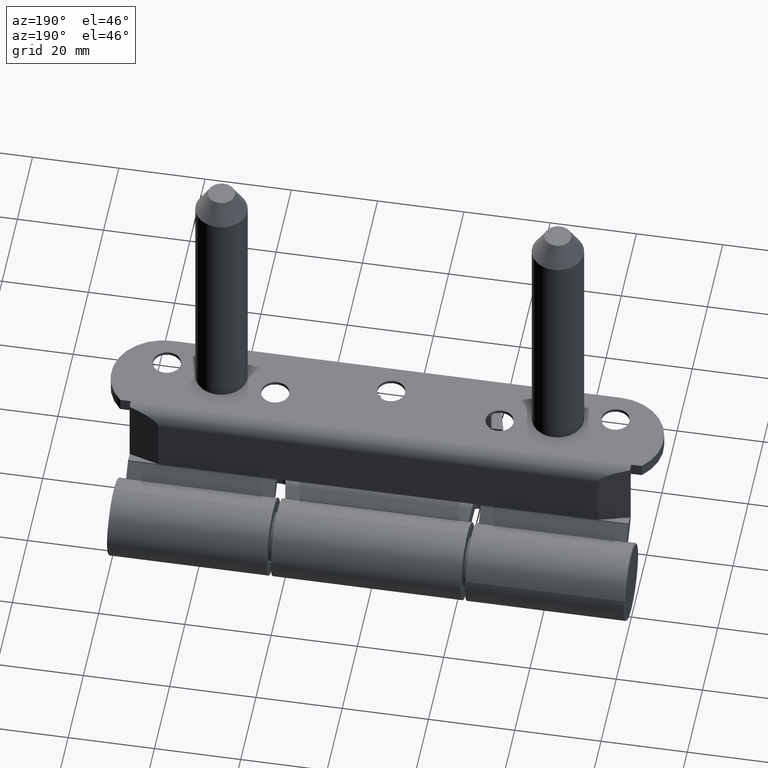
[diagram: clean part render]
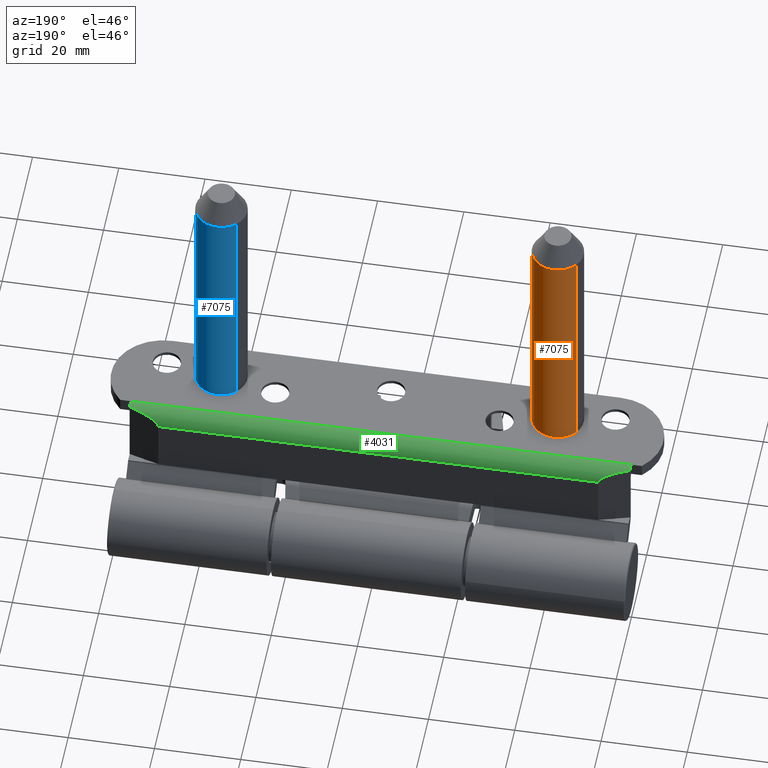
[diagram: same view with three faces highlighted in distinct colors, each labeled with its STEP entity id]
A machine part, auxiliary view with three faces highlighted in distinct colors.
Their STEP definitions:

[orange] entity #7075 — the highlighted cylindrical surface (edge-blend (fillet) strip) has radius 6 mm, axis along (0, 0, 1).
#106 = CARTESIAN_POINT ( 'NONE',  ( -9.325873406851316517E-15, -3.989242903983501037E-15, -6.000000000000000000 ) ) ;
#1635 = DIRECTION ( 'NONE',  ( -2.536605383552710837E-17, -1.000000000000000000, -6.648738173305840321E-16 ) ) ;
#2086 = EDGE_CURVE ( 'NONE', #13755, #12545, #3164, .T. ) ;
#2685 = EDGE_CURVE ( 'NONE', #13216, #12545, #12591, .T. ) ;
#2904 = EDGE_CURVE ( 'NONE', #3622, #13755, #11991, .T. ) ;
#3164 = LINE ( 'NONE', #3252, #4709 ) ;
#3252 = CARTESIAN_POINT ( 'NONE',  ( 1.006066148633973056E-14, 3.989242903983501037E-15, 6.000000000000000000 ) ) ;
#3622 = VERTEX_POINT ( 'NONE', #16735 ) ;
#3996 = ORIENTED_EDGE ( 'NONE', *, *, #2086, .T. ) ;
#4236 = ORIENTED_EDGE ( 'NONE', *, *, #16980, .F. ) ;
#4709 = VECTOR ( 'NONE', #1635, 1000.000000000000000 ) ;
#5598 = AXIS2_PLACEMENT_3D ( 'NONE', #13351, #6239, #14623 ) ;
#6239 = DIRECTION ( 'NONE',  ( -2.536605383552710837E-17, -1.000000000000000000, -6.648738173305840321E-16 ) ) ;
#6515 = FACE_OUTER_BOUND ( 'NONE', #13577, .T. ) ;
#7075 = ADVANCED_FACE ( 'NONE', ( #6515 ), #10913, .T. ) ;
#7873 = ORIENTED_EDGE ( 'NONE', *, *, #2685, .F. ) ;
#8057 = CARTESIAN_POINT ( 'NONE',  ( 3.469446951953614189E-14, 60.00000000000002842, 1.079865363795562416E-13 ) ) ;
#9296 = ORIENTED_EDGE ( 'NONE', *, *, #2904, .T. ) ;
#9434 = CARTESIAN_POINT ( 'NONE',  ( 9.452703676028946066E-15, 5.000000000000001776, 5.999999999999998224 ) ) ;
#9945 = CARTESIAN_POINT ( 'NONE',  ( 1.088505823599401891E-14, 60.00000000000002132, 6.000000000000107470 ) ) ;
#10735 = DIRECTION ( 'NONE',  ( -1.554312234475219354E-15, -6.648738173305835390E-16, -1.000000000000000000 ) ) ;
#10913 = CYLINDRICAL_SURFACE ( 'NONE', #14229, 6.000000000000000000 ) ;
#11407 = AXIS2_PLACEMENT_3D ( 'NONE', #8057, #12331, #12159 ) ;
#11991 = CIRCLE ( 'NONE', #11407, 6.000000000000000000 ) ;
#12159 = DIRECTION ( 'NONE',  ( -1.554312234475219354E-15, -1.156482317317871331E-15, -1.000000000000000000 ) ) ;
#12165 = DIRECTION ( 'NONE',  ( -2.536605383552710837E-17, -1.000000000000000000, -6.648738173305840321E-16 ) ) ;
#12331 = DIRECTION ( 'NONE',  ( -2.536605383552710837E-17, -1.000000000000000000, -6.648738173305840321E-16 ) ) ;
#12545 = VERTEX_POINT ( 'NONE', #9434 ) ;
#12591 = CIRCLE ( 'NONE', #5598, 6.000000000000000000 ) ;
#12664 = VECTOR ( 'NONE', #16760, 1000.000000000000000 ) ;
#13216 = VERTEX_POINT ( 'NONE', #14475 ) ;
#13351 = CARTESIAN_POINT ( 'NONE',  ( -6.938893903907228378E-15, 5.000000000000004441, 1.647987302177966740E-14 ) ) ;
#13577 = EDGE_LOOP ( 'NONE', ( #9296, #3996, #7873, #4236 ) ) ;
#13755 = VERTEX_POINT ( 'NONE', #9945 ) ;
#14198 = LINE ( 'NONE', #106, #12664 ) ;
#14229 = AXIS2_PLACEMENT_3D ( 'NONE', #16440, #12165, #10735 ) ;
#14475 = CARTESIAN_POINT ( 'NONE',  ( -8.464255058185272925E-15, 5.000000000000008882, -6.000000000000000000 ) ) ;
#14623 = DIRECTION ( 'NONE',  ( -1.554312234475219354E-15, -7.228014483236696555E-16, -1.000000000000000000 ) ) ;
#16440 = CARTESIAN_POINT ( 'NONE',  ( 0.000000000000000000, 0.000000000000000000, 0.000000000000000000 ) ) ;
#16735 = CARTESIAN_POINT ( 'NONE',  ( 2.536859611268482379E-14, 60.00000000000002132, -5.999999999999892530 ) ) ;
#16760 = DIRECTION ( 'NONE',  ( -2.536605383552710837E-17, -1.000000000000000000, -6.648738173305840321E-16 ) ) ;
#16980 = EDGE_CURVE ( 'NONE', #3622, #13216, #14198, .T. ) ;

[blue] entity #7075 — the highlighted cylindrical surface (edge-blend (fillet) strip) has radius 6 mm, axis along (0, 0, 1).
#106 = CARTESIAN_POINT ( 'NONE',  ( -9.325873406851316517E-15, -3.989242903983501037E-15, -6.000000000000000000 ) ) ;
#1635 = DIRECTION ( 'NONE',  ( -2.536605383552710837E-17, -1.000000000000000000, -6.648738173305840321E-16 ) ) ;
#2086 = EDGE_CURVE ( 'NONE', #13755, #12545, #3164, .T. ) ;
#2685 = EDGE_CURVE ( 'NONE', #13216, #12545, #12591, .T. ) ;
#2904 = EDGE_CURVE ( 'NONE', #3622, #13755, #11991, .T. ) ;
#3164 = LINE ( 'NONE', #3252, #4709 ) ;
#3252 = CARTESIAN_POINT ( 'NONE',  ( 1.006066148633973056E-14, 3.989242903983501037E-15, 6.000000000000000000 ) ) ;
#3622 = VERTEX_POINT ( 'NONE', #16735 ) ;
#3996 = ORIENTED_EDGE ( 'NONE', *, *, #2086, .T. ) ;
#4236 = ORIENTED_EDGE ( 'NONE', *, *, #16980, .F. ) ;
#4709 = VECTOR ( 'NONE', #1635, 1000.000000000000000 ) ;
#5598 = AXIS2_PLACEMENT_3D ( 'NONE', #13351, #6239, #14623 ) ;
#6239 = DIRECTION ( 'NONE',  ( -2.536605383552710837E-17, -1.000000000000000000, -6.648738173305840321E-16 ) ) ;
#6515 = FACE_OUTER_BOUND ( 'NONE', #13577, .T. ) ;
#7075 = ADVANCED_FACE ( 'NONE', ( #6515 ), #10913, .T. ) ;
#7873 = ORIENTED_EDGE ( 'NONE', *, *, #2685, .F. ) ;
#8057 = CARTESIAN_POINT ( 'NONE',  ( 3.469446951953614189E-14, 60.00000000000002842, 1.079865363795562416E-13 ) ) ;
#9296 = ORIENTED_EDGE ( 'NONE', *, *, #2904, .T. ) ;
#9434 = CARTESIAN_POINT ( 'NONE',  ( 9.452703676028946066E-15, 5.000000000000001776, 5.999999999999998224 ) ) ;
#9945 = CARTESIAN_POINT ( 'NONE',  ( 1.088505823599401891E-14, 60.00000000000002132, 6.000000000000107470 ) ) ;
#10735 = DIRECTION ( 'NONE',  ( -1.554312234475219354E-15, -6.648738173305835390E-16, -1.000000000000000000 ) ) ;
#10913 = CYLINDRICAL_SURFACE ( 'NONE', #14229, 6.000000000000000000 ) ;
#11407 = AXIS2_PLACEMENT_3D ( 'NONE', #8057, #12331, #12159 ) ;
#11991 = CIRCLE ( 'NONE', #11407, 6.000000000000000000 ) ;
#12159 = DIRECTION ( 'NONE',  ( -1.554312234475219354E-15, -1.156482317317871331E-15, -1.000000000000000000 ) ) ;
#12165 = DIRECTION ( 'NONE',  ( -2.536605383552710837E-17, -1.000000000000000000, -6.648738173305840321E-16 ) ) ;
#12331 = DIRECTION ( 'NONE',  ( -2.536605383552710837E-17, -1.000000000000000000, -6.648738173305840321E-16 ) ) ;
#12545 = VERTEX_POINT ( 'NONE', #9434 ) ;
#12591 = CIRCLE ( 'NONE', #5598, 6.000000000000000000 ) ;
#12664 = VECTOR ( 'NONE', #16760, 1000.000000000000000 ) ;
#13216 = VERTEX_POINT ( 'NONE', #14475 ) ;
#13351 = CARTESIAN_POINT ( 'NONE',  ( -6.938893903907228378E-15, 5.000000000000004441, 1.647987302177966740E-14 ) ) ;
#13577 = EDGE_LOOP ( 'NONE', ( #9296, #3996, #7873, #4236 ) ) ;
#13755 = VERTEX_POINT ( 'NONE', #9945 ) ;
#14198 = LINE ( 'NONE', #106, #12664 ) ;
#14229 = AXIS2_PLACEMENT_3D ( 'NONE', #16440, #12165, #10735 ) ;
#14475 = CARTESIAN_POINT ( 'NONE',  ( -8.464255058185272925E-15, 5.000000000000008882, -6.000000000000000000 ) ) ;
#14623 = DIRECTION ( 'NONE',  ( -1.554312234475219354E-15, -7.228014483236696555E-16, -1.000000000000000000 ) ) ;
#16440 = CARTESIAN_POINT ( 'NONE',  ( 0.000000000000000000, 0.000000000000000000, 0.000000000000000000 ) ) ;
#16735 = CARTESIAN_POINT ( 'NONE',  ( 2.536859611268482379E-14, 60.00000000000002132, -5.999999999999892530 ) ) ;
#16760 = DIRECTION ( 'NONE',  ( -2.536605383552710837E-17, -1.000000000000000000, -6.648738173305840321E-16 ) ) ;
#16980 = EDGE_CURVE ( 'NONE', #3622, #13216, #14198, .T. ) ;

[green] entity #4031 — the highlighted cylindrical surface (edge-blend (fillet) strip) has radius 3.5 mm, axis along (-1, 0, 0).
#30 =( BOUNDED_CURVE ( )  B_SPLINE_CURVE ( 3, ( #14448, #4427, #7344, #4518 ),
 .UNSPECIFIED., .F., .F. ) 
 B_SPLINE_CURVE_WITH_KNOTS ( ( 4, 4 ),
 ( 0.000000000000000000, 1.127885282721259097 ),
 .UNSPECIFIED. ) 
 CURVE ( )  GEOMETRIC_REPRESENTATION_ITEM ( )  RATIONAL_B_SPLINE_CURVE ( ( 1.000000000000000000, 0.8967695031523441607, 0.8967695031523441607, 1.000000000000000000 ) ) 
 REPRESENTATION_ITEM ( '' )  );
#192 = CARTESIAN_POINT ( 'NONE',  ( -24.00000000000001421, 50.99999999999997158, 3.499999999999996003 ) ) ;
#278 = ORIENTED_EDGE ( 'NONE', *, *, #4354, .T. ) ;
#357 = AXIS2_PLACEMENT_3D ( 'NONE', #5209, #2413, #2665 ) ;
#2413 = DIRECTION ( 'NONE',  ( 1.691311381637444535E-32, 1.000000000000000000, -7.703719777548943412E-33 ) ) ;
#2438 = DIRECTION ( 'NONE',  ( 0.000000000000000000, 0.000000000000000000, 1.000000000000000000 ) ) ;
#2501 = LINE ( 'NONE', #8043, #4119 ) ;
#2582 = EDGE_CURVE ( 'NONE', #3825, #10649, #5775, .T. ) ;
#2665 = DIRECTION ( 'NONE',  ( 0.000000000000000000, 0.000000000000000000, 1.000000000000000000 ) ) ;
#2971 = CIRCLE ( 'NONE', #13165, 3.500000000000001332 ) ;
#3587 = ORIENTED_EDGE ( 'NONE', *, *, #4050, .T. ) ;
#3765 = FACE_OUTER_BOUND ( 'NONE', #5579, .T. ) ;
#3825 = VERTEX_POINT ( 'NONE', #16514 ) ;
#4031 = ADVANCED_FACE ( 'NONE', ( #3765 ), #10805, .T. ) ;
#4050 = EDGE_CURVE ( 'NONE', #6269, #11462, #2501, .T. ) ;
#4084 = CARTESIAN_POINT ( 'NONE',  ( -22.00000000000000711, 58.00000000000000711, 0.3377223398316128722 ) ) ;
#4119 = VECTOR ( 'NONE', #6670, 1000.000000000000000 ) ;
#4171 = ORIENTED_EDGE ( 'NONE', *, *, #9692, .F. ) ;
#4354 = EDGE_CURVE ( 'NONE', #11462, #7741, #8078, .T. ) ;
#4358 = CARTESIAN_POINT ( 'NONE',  ( -24.00000000000001066, 50.99999999999999289, 2.109208805004632925 ) ) ;
#4427 = CARTESIAN_POINT ( 'NONE',  ( -24.00000000000002487, -51.00000000000000000, 2.109208805004634701 ) ) ;
#4480 = VERTEX_POINT ( 'NONE', #6880 ) ;
#4507 = DIRECTION ( 'NONE',  ( -1.691311381637444535E-32, -1.000000000000000000, 7.703719777548943412E-33 ) ) ;
#4518 = CARTESIAN_POINT ( 'NONE',  ( -22.00000000000000711, -58.00000000000000711, 0.3377223398316232528 ) ) ;
#5209 = CARTESIAN_POINT ( 'NONE',  ( -20.50000000000001776, -116.0813060074751917, 3.499999999999999556 ) ) ;
#5321 = VECTOR ( 'NONE', #4507, 1000.000000000000000 ) ;
#5579 = EDGE_LOOP ( 'NONE', ( #4171, #9777, #12818, #5709, #3587, #278 ) ) ;
#5709 = ORIENTED_EDGE ( 'NONE', *, *, #10278, .T. ) ;
#5775 = LINE ( 'NONE', #10267, #5321 ) ;
#6269 = VERTEX_POINT ( 'NONE', #6676 ) ;
#6670 = DIRECTION ( 'NONE',  ( -1.691311381637444535E-32, -1.000000000000000000, 7.703719777548943412E-33 ) ) ;
#6676 = CARTESIAN_POINT ( 'NONE',  ( -20.50000000000001066, 58.00000000000000711, -6.938893903907228378E-15 ) ) ;
#6880 = CARTESIAN_POINT ( 'NONE',  ( -22.00000000000000711, 58.00000000000000711, 0.3377223398316128722 ) ) ;
#7267 = CARTESIAN_POINT ( 'NONE',  ( -22.00000000000000711, -58.00000000000000711, 0.3377223398316232528 ) ) ;
#7344 = CARTESIAN_POINT ( 'NONE',  ( -23.25659083596937293, -53.60193207410727467, 0.9337757091153425781 ) ) ;
#7350 =( BOUNDED_CURVE ( )  B_SPLINE_CURVE ( 3, ( #4084, #9570, #4358, #192 ),
 .UNSPECIFIED., .F., .F. ) 
 B_SPLINE_CURVE_WITH_KNOTS ( ( 4, 4 ),
 ( 2.013707370868532909, 3.141592653589791784 ),
 .UNSPECIFIED. ) 
 CURVE ( )  GEOMETRIC_REPRESENTATION_ITEM ( )  RATIONAL_B_SPLINE_CURVE ( ( 1.000000000000000000, 0.8967695031523441607, 0.8967695031523441607, 1.000000000000000000 ) ) 
 REPRESENTATION_ITEM ( '' )  );
#7741 = VERTEX_POINT ( 'NONE', #7267 ) ;
#7791 = AXIS2_PLACEMENT_3D ( 'NONE', #13223, #11865, #17415 ) ;
#8042 = CARTESIAN_POINT ( 'NONE',  ( -20.50000000000001066, -58.00000000000000711, 3.469446951953614189E-15 ) ) ;
#8043 = CARTESIAN_POINT ( 'NONE',  ( -20.50000000000001066, 64.00000000000000000, -6.938893903907228378E-15 ) ) ;
#8078 = CIRCLE ( 'NONE', #7791, 3.500000000000001332 ) ;
#9570 = CARTESIAN_POINT ( 'NONE',  ( -23.25659083596935162, 53.60193207410727467, 0.9337757091153425781 ) ) ;
#9692 = EDGE_CURVE ( 'NONE', #10649, #7741, #30, .T. ) ;
#9777 = ORIENTED_EDGE ( 'NONE', *, *, #2582, .F. ) ;
#10267 = CARTESIAN_POINT ( 'NONE',  ( -24.00000000000002132, 64.00000000000000000, 3.499999999999985789 ) ) ;
#10278 = EDGE_CURVE ( 'NONE', #4480, #6269, #2971, .T. ) ;
#10649 = VERTEX_POINT ( 'NONE', #13426 ) ;
#10805 = CYLINDRICAL_SURFACE ( 'NONE', #357, 3.500000000000001332 ) ;
#10916 = DIRECTION ( 'NONE',  ( -1.691311381637444535E-32, -1.000000000000000000, 7.703719777548943412E-33 ) ) ;
#11462 = VERTEX_POINT ( 'NONE', #8042 ) ;
#11865 = DIRECTION ( 'NONE',  ( 1.691311381637444535E-32, 1.000000000000000000, -7.703719777548943412E-33 ) ) ;
#12818 = ORIENTED_EDGE ( 'NONE', *, *, #17679, .F. ) ;
#13165 = AXIS2_PLACEMENT_3D ( 'NONE', #13527, #10916, #2438 ) ;
#13223 = CARTESIAN_POINT ( 'NONE',  ( -20.50000000000001066, -58.00000000000001421, 3.500000000000003109 ) ) ;
#13426 = CARTESIAN_POINT ( 'NONE',  ( -24.00000000000002132, -51.00000000000000711, 3.499999999999982236 ) ) ;
#13527 = CARTESIAN_POINT ( 'NONE',  ( -20.50000000000001066, 58.00000000000000711, 3.499999999999999556 ) ) ;
#14448 = CARTESIAN_POINT ( 'NONE',  ( -24.00000000000002132, -51.00000000000000711, 3.499999999999982236 ) ) ;
#16514 = CARTESIAN_POINT ( 'NONE',  ( -24.00000000000001421, 50.99999999999997158, 3.499999999999996003 ) ) ;
#17415 = DIRECTION ( 'NONE',  ( 0.000000000000000000, 0.000000000000000000, 1.000000000000000000 ) ) ;
#17679 = EDGE_CURVE ( 'NONE', #4480, #3825, #7350, .T. ) ;